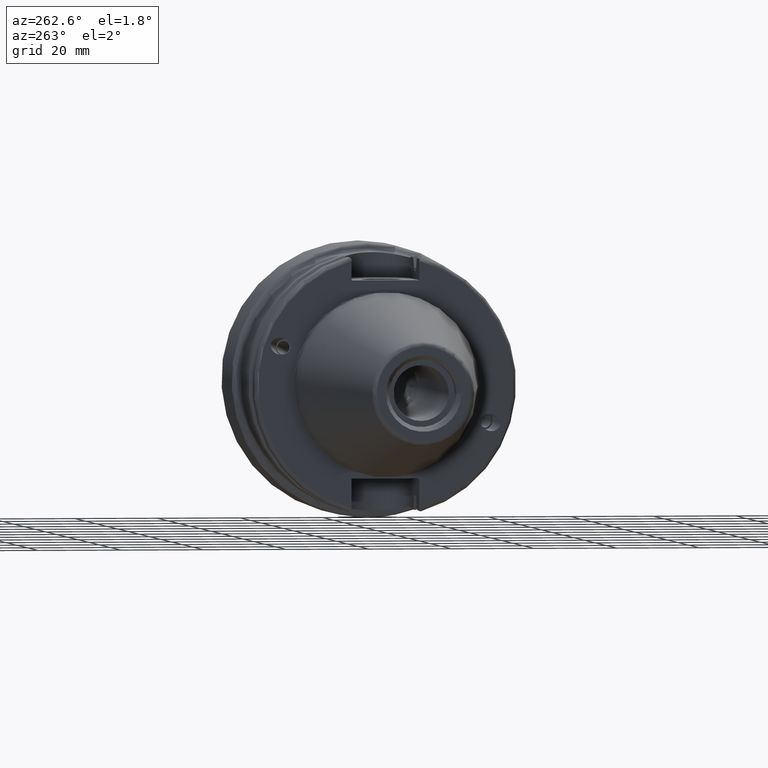
[diagram: clean part render]
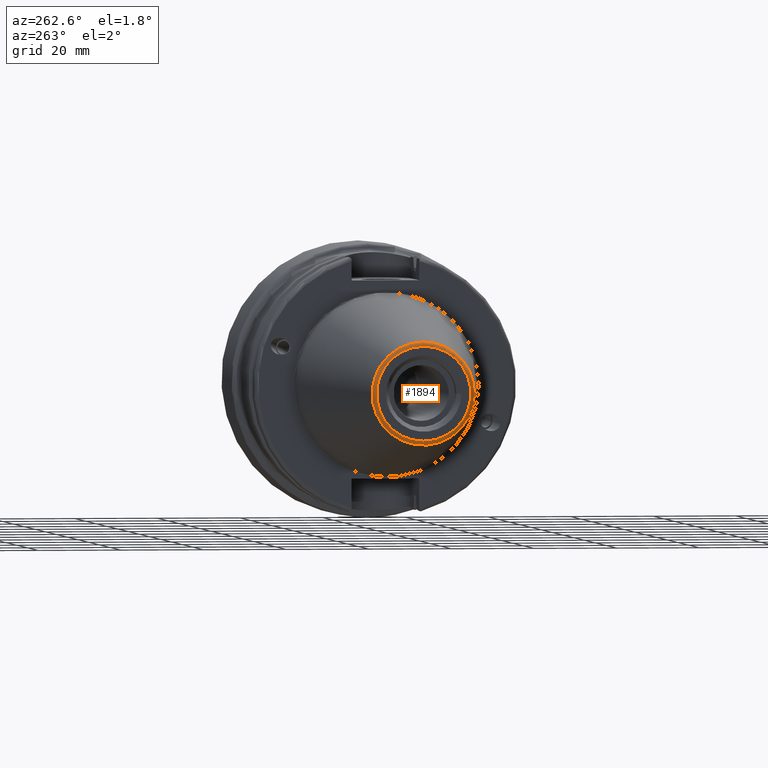
[diagram: same view with one face highlighted and labeled with its STEP entity id]
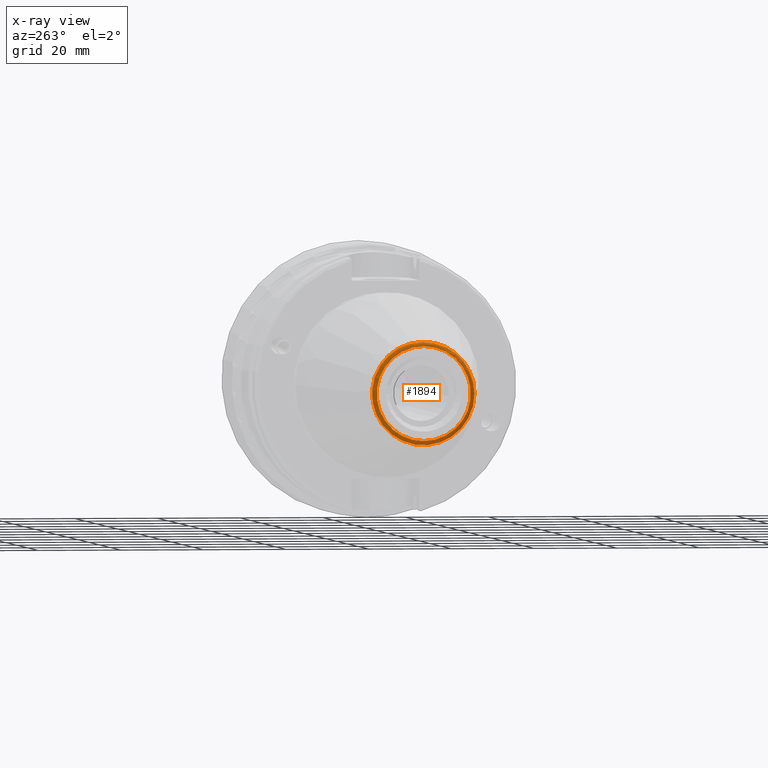
[diagram: x-ray of the same camera — body ghosted, the highlighted face saturated]
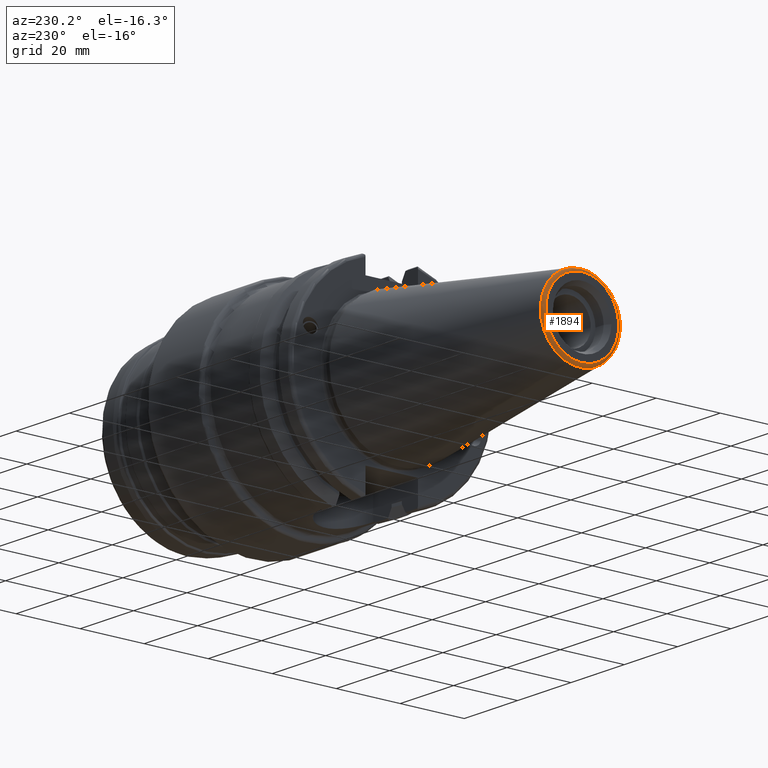
[diagram: same view with one face highlighted and labeled with its STEP entity id]
A machine part, auxiliary view. The second image highlights one B-rep face of the part: STEP entity #1894.
The next image is the same camera in x-ray: the body ghosted, the highlighted face saturated — about 0% of this face is hidden behind the body in this view.
A second angle (auxiliary view) of the same face is appended — the face is thin or edge-on in the first view.
In plain terms, the highlighted toroidal blend (fillet) surface has major radius 11.4071 mm and minor (blend) radius 1 mm.
Its self-contained STEP definition (entity closure, byte-faithful):
#448=FACE_OUTER_BOUND('',#566,.T.);
#566=EDGE_LOOP('',(#1654,#1655,#1656,#1657,#1658));
#709=CIRCLE('',#2153,12.3966635780937);
#710=CIRCLE('',#2154,12.3966635780937);
#711=CIRCLE('',#2155,1.);
#712=CIRCLE('',#2156,11.4071305970304);
#906=VERTEX_POINT('',#3662);
#907=VERTEX_POINT('',#3663);
#908=VERTEX_POINT('',#3666);
#1174=EDGE_CURVE('',#906,#907,#709,.T.);
#1175=EDGE_CURVE('',#907,#906,#710,.T.);
#1176=EDGE_CURVE('',#906,#908,#711,.T.);
#1177=EDGE_CURVE('',#908,#908,#712,.T.);
#1654=ORIENTED_EDGE('',*,*,#1174,.T.);
#1655=ORIENTED_EDGE('',*,*,#1175,.T.);
#1656=ORIENTED_EDGE('',*,*,#1176,.T.);
#1657=ORIENTED_EDGE('',*,*,#1177,.T.);
#1658=ORIENTED_EDGE('',*,*,#1176,.F.);
#1816=TOROIDAL_SURFACE('',#2152,11.4071305970304,1.);
#1894=ADVANCED_FACE('',(#448),#1816,.T.);
#2152=AXIS2_PLACEMENT_3D('',#3661,#2690,#2691);
#2153=AXIS2_PLACEMENT_3D('',#3664,#2692,#2693);
#2154=AXIS2_PLACEMENT_3D('',#3665,#2694,#2695);
#2155=AXIS2_PLACEMENT_3D('',#3667,#2696,#2697);
#2156=AXIS2_PLACEMENT_3D('',#3668,#2698,#2699);
#2690=DIRECTION('center_axis',(1.,0.,0.));
#2691=DIRECTION('ref_axis',(0.,0.,-1.));
#2692=DIRECTION('center_axis',(-1.,0.,0.));
#2693=DIRECTION('ref_axis',(0.,-1.,3.06161699786838E-17));
#2694=DIRECTION('center_axis',(-1.,0.,0.));
#2695=DIRECTION('ref_axis',(0.,-1.,3.06161699786838E-17));
#2696=DIRECTION('center_axis',(0.,-1.,-1.22464679914735E-16));
#2697=DIRECTION('ref_axis',(0.,-1.22464679914735E-16,1.));
#2698=DIRECTION('center_axis',(1.,0.,0.));
#2699=DIRECTION('ref_axis',(0.,-1.,1.83697019872103E-16));
#3661=CARTESIAN_POINT('Origin',(-67.25,0.,0.));
#3662=CARTESIAN_POINT('',(-67.3943068930717,-1.5181534371019E-15,12.3966635780937));
#3663=CARTESIAN_POINT('',(-67.3943068930718,-12.3966635780937,-1.5181534371019E-15));
#3664=CARTESIAN_POINT('Origin',(-67.3943068930717,0.,-1.89769179637738E-15));
#3665=CARTESIAN_POINT('Origin',(-67.3943068930717,0.,-1.89769179637738E-15));
#3666=CARTESIAN_POINT('',(-68.25,-1.39697059731091E-15,11.4071305970304));
#3667=CARTESIAN_POINT('Origin',(-67.25,-1.39697059731091E-15,11.4071305970304));
#3668=CARTESIAN_POINT('Origin',(-68.25,0.,0.));